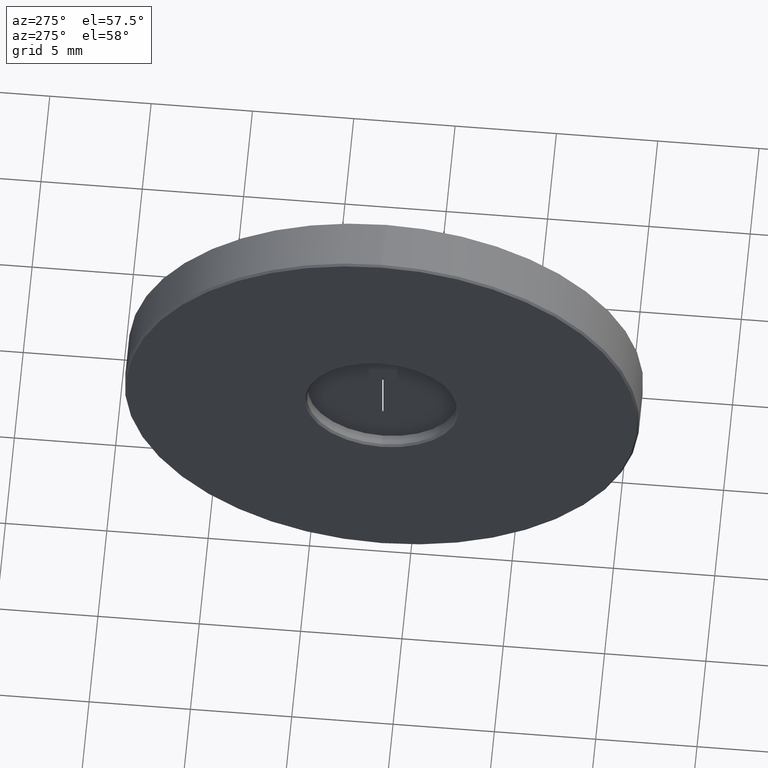
[diagram: clean part render]
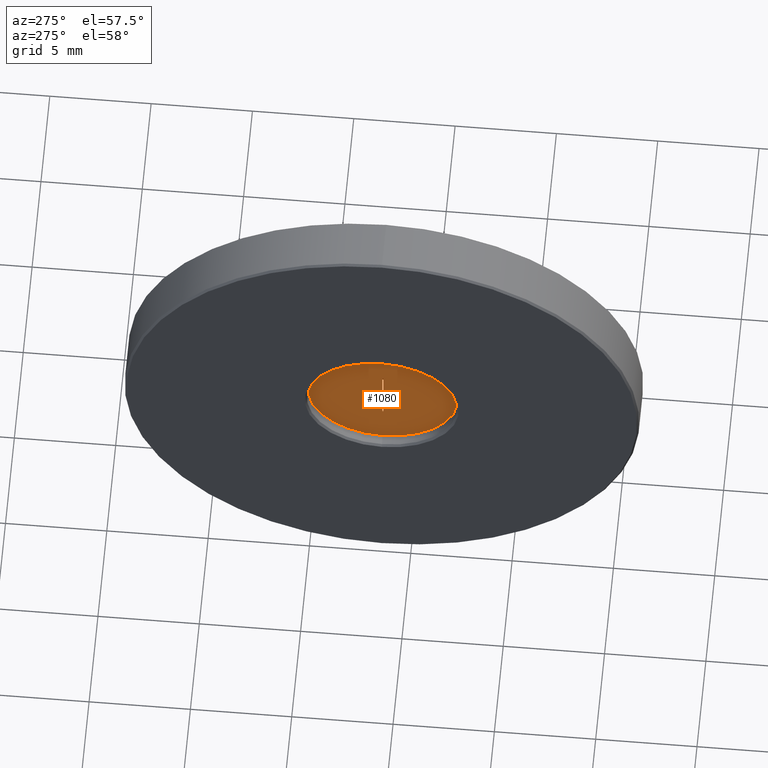
[diagram: same view with one face highlighted and labeled with its STEP entity id]
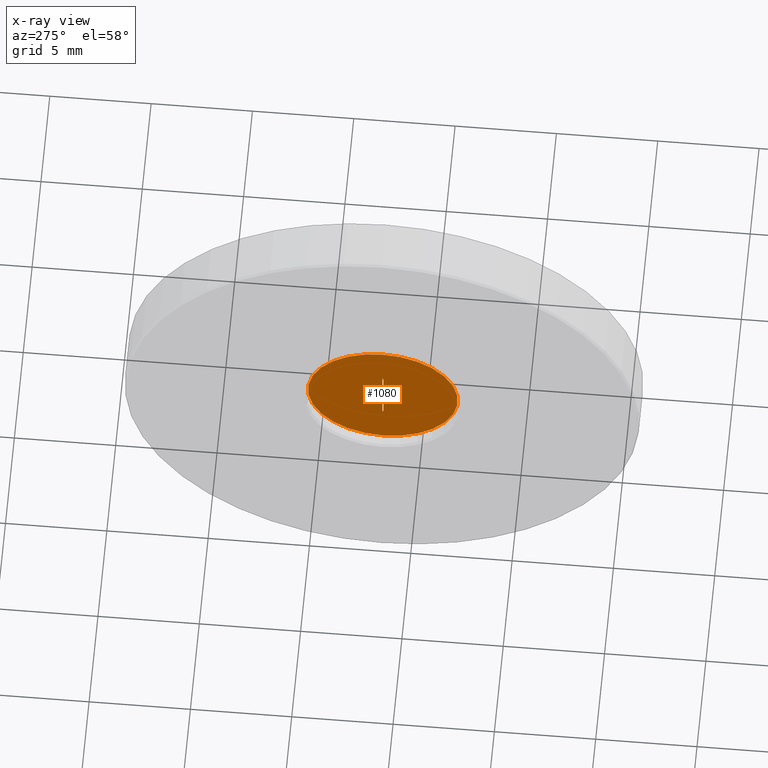
[diagram: x-ray of the same camera — body ghosted, the highlighted face saturated]
A machine part, auxiliary view. The second image highlights one B-rep face of the part: STEP entity #1080.
The next image is the same camera in x-ray: the body ghosted, the highlighted face saturated — about 0% of this face is hidden behind the body in this view.
In plain terms, the highlighted planar face has unit normal (1, 0, 0).
Its self-contained STEP definition (entity closure, byte-faithful):
#5 = EDGE_LOOP ( 'NONE', ( #443, #810 ) ) ;
#9 = DIRECTION ( 'NONE',  ( 1.000000000000000000, 0.000000000000000000, 0.000000000000000000 ) ) ;
#52 = ORIENTED_EDGE ( 'NONE', *, *, #549, .T. ) ;
#78 = EDGE_CURVE ( 'NONE', #176, #679, #539, .T. ) ;
#99 = FACE_OUTER_BOUND ( 'NONE', #5, .T. ) ;
#160 = VECTOR ( 'NONE', #467, 1000.000000000000000 ) ;
#170 = DIRECTION ( 'NONE',  ( 0.000000000000000000, 0.000000000000000000, 1.000000000000000000 ) ) ;
#176 = VERTEX_POINT ( 'NONE', #301 ) ;
#199 = FACE_BOUND ( 'NONE', #1375, .T. ) ;
#203 = VERTEX_POINT ( 'NONE', #507 ) ;
#219 = DIRECTION ( 'NONE',  ( 0.000000000000000000, 0.000000000000000000, -1.000000000000000000 ) ) ;
#231 = CARTESIAN_POINT ( 'NONE',  ( -4.334863851253000000, 1.411758841084999938, 26.89999999999999858 ) ) ;
#247 = CARTESIAN_POINT ( 'NONE',  ( -4.334863851253000000, 1.461758841085000205, 23.89999999999999858 ) ) ;
#256 = VERTEX_POINT ( 'NONE', #231 ) ;
#260 = CARTESIAN_POINT ( 'NONE',  ( -4.334863851253000000, 1.461758841085000205, 26.89999999999999858 ) ) ;
#294 = CARTESIAN_POINT ( 'NONE',  ( -4.334863851253000000, 1.436758841085000071, 25.39999999999999858 ) ) ;
#301 = CARTESIAN_POINT ( 'NONE',  ( -4.334863851253000000, 1.411758841084999938, 23.89999999999999858 ) ) ;
#323 = CIRCLE ( 'NONE', #890, 3.700000000000001954 ) ;
#357 = ORIENTED_EDGE ( 'NONE', *, *, #669, .T. ) ;
#387 = ORIENTED_EDGE ( 'NONE', *, *, #78, .T. ) ;
#390 = LINE ( 'NONE', #603, #708 ) ;
#443 = ORIENTED_EDGE ( 'NONE', *, *, #1313, .T. ) ;
#467 = DIRECTION ( 'NONE',  ( 0.000000000000000000, -1.000000000000000000, 0.000000000000000000 ) ) ;
#507 = CARTESIAN_POINT ( 'NONE',  ( -4.334863851253000000, 1.461758841085000205, 26.89999999999999858 ) ) ;
#519 = EDGE_CURVE ( 'NONE', #679, #203, #1246, .T. ) ;
#539 = LINE ( 'NONE', #1089, #1025 ) ;
#549 = EDGE_CURVE ( 'NONE', #256, #176, #390, .T. ) ;
#550 = PLANE ( 'NONE',  #1186 ) ;
#587 = LINE ( 'NONE', #678, #160 ) ;
#603 = CARTESIAN_POINT ( 'NONE',  ( -4.334863851253000000, 1.411758841084999938, 26.89999999999999858 ) ) ;
#604 = DIRECTION ( 'NONE',  ( 0.000000000000000000, 0.000000000000000000, -1.000000000000000000 ) ) ;
#613 = AXIS2_PLACEMENT_3D ( 'NONE', #951, #1289, #604 ) ;
#635 = CARTESIAN_POINT ( 'NONE',  ( -4.334863851253000000, 1.436758841085000515, 29.10000000000000142 ) ) ;
#669 = EDGE_CURVE ( 'NONE', #203, #256, #587, .T. ) ;
#678 = CARTESIAN_POINT ( 'NONE',  ( -4.334863851253000000, 1.461758841085000205, 26.89999999999999858 ) ) ;
#679 = VERTEX_POINT ( 'NONE', #247 ) ;
#708 = VECTOR ( 'NONE', #1355, 1000.000000000000000 ) ;
#776 = CARTESIAN_POINT ( 'NONE',  ( -4.334863851253000000, 1.436758841085000071, 21.69999999999999574 ) ) ;
#810 = ORIENTED_EDGE ( 'NONE', *, *, #834, .T. ) ;
#834 = EDGE_CURVE ( 'NONE', #997, #1209, #323, .T. ) ;
#890 = AXIS2_PLACEMENT_3D ( 'NONE', #294, #963, #1300 ) ;
#951 = CARTESIAN_POINT ( 'NONE',  ( -4.334863851253000000, 1.436758841085000071, 25.39999999999999858 ) ) ;
#963 = DIRECTION ( 'NONE',  ( -1.000000000000000000, 0.000000000000000000, 0.000000000000000000 ) ) ;
#997 = VERTEX_POINT ( 'NONE', #635 ) ;
#1025 = VECTOR ( 'NONE', #1193, 1000.000000000000000 ) ;
#1080 = ADVANCED_FACE ( 'NONE', ( #199, #99 ), #550, .F. ) ;
#1089 = CARTESIAN_POINT ( 'NONE',  ( -4.334863851253000000, 1.461758841085000205, 23.89999999999999858 ) ) ;
#1099 = CARTESIAN_POINT ( 'NONE',  ( -4.334863851253000000, 1.436758841085000071, 25.39999999999999858 ) ) ;
#1142 = VECTOR ( 'NONE', #170, 1000.000000000000000 ) ;
#1186 = AXIS2_PLACEMENT_3D ( 'NONE', #1099, #9, #219 ) ;
#1187 = CIRCLE ( 'NONE', #613, 3.700000000000001954 ) ;
#1193 = DIRECTION ( 'NONE',  ( 0.000000000000000000, 1.000000000000000000, 0.000000000000000000 ) ) ;
#1209 = VERTEX_POINT ( 'NONE', #776 ) ;
#1246 = LINE ( 'NONE', #260, #1142 ) ;
#1289 = DIRECTION ( 'NONE',  ( -1.000000000000000000, 0.000000000000000000, 0.000000000000000000 ) ) ;
#1300 = DIRECTION ( 'NONE',  ( 0.000000000000000000, 0.000000000000000000, -1.000000000000000000 ) ) ;
#1313 = EDGE_CURVE ( 'NONE', #1209, #997, #1187, .T. ) ;
#1355 = DIRECTION ( 'NONE',  ( 0.000000000000000000, 0.000000000000000000, -1.000000000000000000 ) ) ;
#1375 = EDGE_LOOP ( 'NONE', ( #387, #1394, #357, #52 ) ) ;
#1394 = ORIENTED_EDGE ( 'NONE', *, *, #519, .T. ) ;